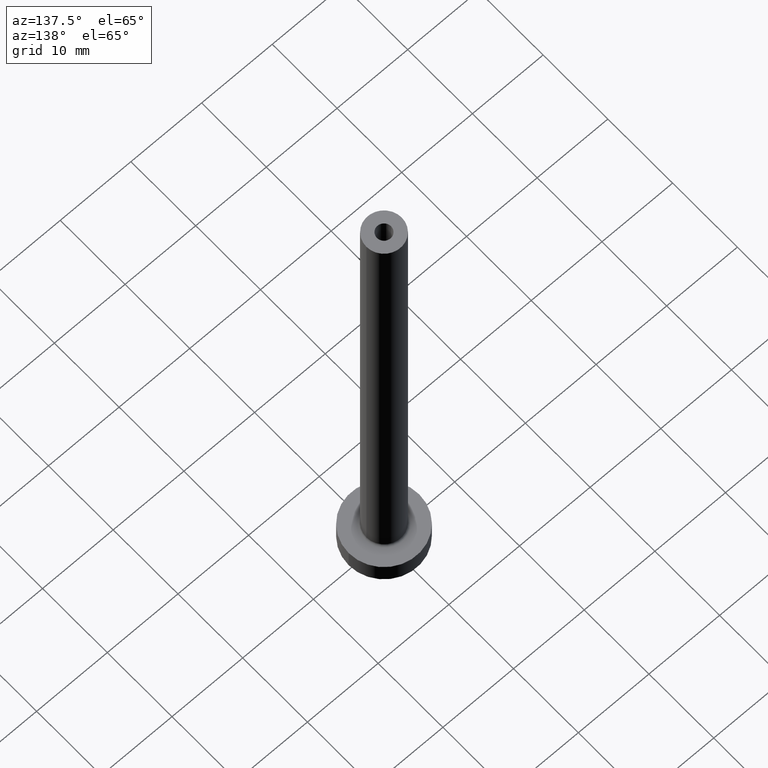
[diagram: clean part render]
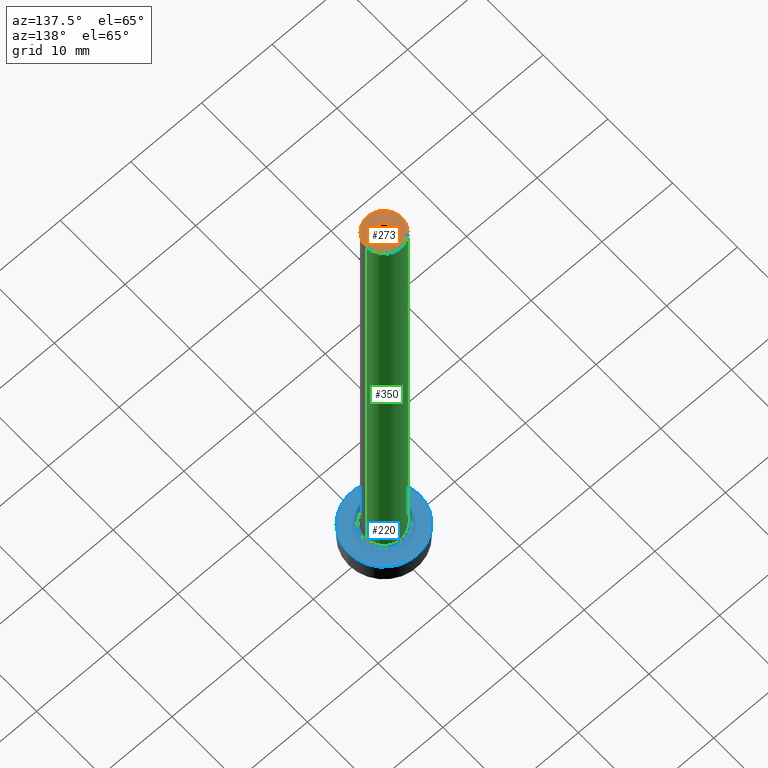
[diagram: same view with three faces highlighted in distinct colors, each labeled with its STEP entity id]
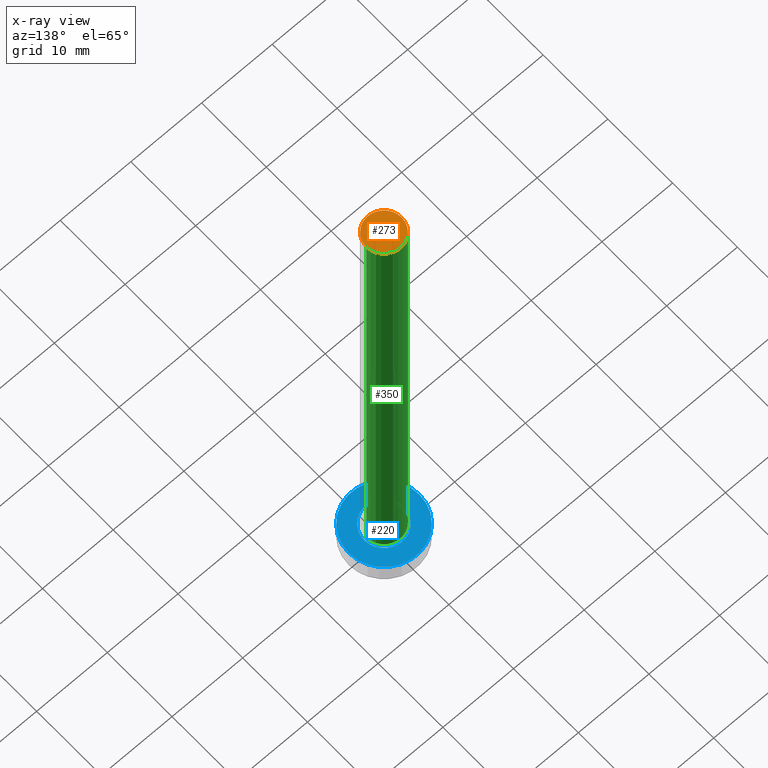
[diagram: x-ray of the same camera — body ghosted, the three highlighted faces saturated]
A machine part, auxiliary view with three faces highlighted in distinct colors.
The next image is the same camera in x-ray (body ghosted, the three faces saturated) — at least one of them is partly hidden behind the body in this view.
Their STEP definitions:

[orange] entity #273 — the highlighted planar face has unit normal (0, 0, 1).
#12 = DIRECTION ( 'NONE',  ( 0.000000000000000000, 0.000000000000000000, 1.000000000000000000 ) ) ;
#20 = AXIS2_PLACEMENT_3D ( 'NONE', #134, #29, #340 ) ;
#23 = CIRCLE ( 'NONE', #43, 1.000000000000000000 ) ;
#29 = DIRECTION ( 'NONE',  ( 0.000000000000000000, 0.000000000000000000, 1.000000000000000000 ) ) ;
#36 = VERTEX_POINT ( 'NONE', #423 ) ;
#37 = VERTEX_POINT ( 'NONE', #456 ) ;
#43 = AXIS2_PLACEMENT_3D ( 'NONE', #146, #283, #207 ) ;
#52 = CARTESIAN_POINT ( 'NONE',  ( 2.500000000000000000, 3.061616997868383141E-16, 75.00000000000001421 ) ) ;
#57 = PLANE ( 'NONE',  #128 ) ;
#59 = FACE_OUTER_BOUND ( 'NONE', #344, .T. ) ;
#60 = EDGE_CURVE ( 'NONE', #37, #36, #153, .T. ) ;
#62 = CARTESIAN_POINT ( 'NONE',  ( 0.000000000000000000, 0.000000000000000000, 75.00000000000001421 ) ) ;
#70 = ORIENTED_EDGE ( 'NONE', *, *, #343, .T. ) ;
#76 = CARTESIAN_POINT ( 'NONE',  ( 0.000000000000000000, 0.000000000000000000, 75.00000000000001421 ) ) ;
#78 = EDGE_CURVE ( 'NONE', #404, #349, #330, .T. ) ;
#80 = CIRCLE ( 'NONE', #20, 2.500000000000000000 ) ;
#123 = DIRECTION ( 'NONE',  ( 1.000000000000000000, 0.000000000000000000, -0.000000000000000000 ) ) ;
#128 = AXIS2_PLACEMENT_3D ( 'NONE', #62, #445, #123 ) ;
#134 = CARTESIAN_POINT ( 'NONE',  ( 0.000000000000000000, 0.000000000000000000, 75.00000000000001421 ) ) ;
#146 = CARTESIAN_POINT ( 'NONE',  ( 0.000000000000000000, 0.000000000000000000, 75.00000000000001421 ) ) ;
#151 = DIRECTION ( 'NONE',  ( 1.000000000000000000, 0.000000000000000000, 0.000000000000000000 ) ) ;
#153 = CIRCLE ( 'NONE', #286, 1.000000000000000000 ) ;
#161 = FACE_BOUND ( 'NONE', #167, .T. ) ;
#167 = EDGE_LOOP ( 'NONE', ( #370, #175 ) ) ;
#175 = ORIENTED_EDGE ( 'NONE', *, *, #391, .F. ) ;
#207 = DIRECTION ( 'NONE',  ( 1.000000000000000000, 0.000000000000000000, 0.000000000000000000 ) ) ;
#216 = DIRECTION ( 'NONE',  ( 1.000000000000000000, 0.000000000000000000, 0.000000000000000000 ) ) ;
#232 = ORIENTED_EDGE ( 'NONE', *, *, #78, .T. ) ;
#243 = CARTESIAN_POINT ( 'NONE',  ( -2.500000000000000000, 0.000000000000000000, 75.00000000000001421 ) ) ;
#251 = AXIS2_PLACEMENT_3D ( 'NONE', #76, #363, #216 ) ;
#273 = ADVANCED_FACE ( 'NONE', ( #161, #59 ), #57, .T. ) ;
#283 = DIRECTION ( 'NONE',  ( 0.000000000000000000, 0.000000000000000000, 1.000000000000000000 ) ) ;
#286 = AXIS2_PLACEMENT_3D ( 'NONE', #430, #12, #151 ) ;
#330 = CIRCLE ( 'NONE', #251, 2.500000000000000000 ) ;
#340 = DIRECTION ( 'NONE',  ( 1.000000000000000000, 0.000000000000000000, 0.000000000000000000 ) ) ;
#343 = EDGE_CURVE ( 'NONE', #349, #404, #80, .T. ) ;
#344 = EDGE_LOOP ( 'NONE', ( #232, #70 ) ) ;
#349 = VERTEX_POINT ( 'NONE', #52 ) ;
#363 = DIRECTION ( 'NONE',  ( 0.000000000000000000, 0.000000000000000000, 1.000000000000000000 ) ) ;
#370 = ORIENTED_EDGE ( 'NONE', *, *, #60, .F. ) ;
#391 = EDGE_CURVE ( 'NONE', #36, #37, #23, .T. ) ;
#404 = VERTEX_POINT ( 'NONE', #243 ) ;
#423 = CARTESIAN_POINT ( 'NONE',  ( 1.000000000000000000, 1.224646799147353207E-16, 75.00000000000001421 ) ) ;
#430 = CARTESIAN_POINT ( 'NONE',  ( 0.000000000000000000, 0.000000000000000000, 75.00000000000001421 ) ) ;
#445 = DIRECTION ( 'NONE',  ( 0.000000000000000000, 0.000000000000000000, 1.000000000000000000 ) ) ;
#456 = CARTESIAN_POINT ( 'NONE',  ( -1.000000000000000000, 0.000000000000000000, 75.00000000000001421 ) ) ;

[blue] entity #220 — the highlighted planar face has unit normal (0, 0, 1).
#4 = CARTESIAN_POINT ( 'NONE',  ( 0.000000000000000000, 0.000000000000000000, 3.000000000000000000 ) ) ;
#10 = EDGE_CURVE ( 'NONE', #302, #156, #314, .T. ) ;
#73 = CIRCLE ( 'NONE', #200, 5.000000000000000000 ) ;
#77 = CARTESIAN_POINT ( 'NONE',  ( 0.000000000000000000, 0.000000000000000000, 3.000000000000000000 ) ) ;
#114 = DIRECTION ( 'NONE',  ( 1.000000000000000000, 0.000000000000000000, 0.000000000000000000 ) ) ;
#116 = EDGE_CURVE ( 'NONE', #293, #416, #73, .T. ) ;
#121 = CIRCLE ( 'NONE', #241, 2.799999999999999822 ) ;
#126 = EDGE_LOOP ( 'NONE', ( #244, #299 ) ) ;
#138 = DIRECTION ( 'NONE',  ( -0.000000000000000000, -0.000000000000000000, -1.000000000000000000 ) ) ;
#156 = VERTEX_POINT ( 'NONE', #257 ) ;
#157 = FACE_BOUND ( 'NONE', #126, .T. ) ;
#163 = ORIENTED_EDGE ( 'NONE', *, *, #116, .T. ) ;
#164 = DIRECTION ( 'NONE',  ( 0.000000000000000000, 0.000000000000000000, 1.000000000000000000 ) ) ;
#166 = CARTESIAN_POINT ( 'NONE',  ( 2.799999999999999822, 0.000000000000000000, 2.999999999999998668 ) ) ;
#168 = DIRECTION ( 'NONE',  ( 1.000000000000000000, 0.000000000000000000, 0.000000000000000000 ) ) ;
#192 = DIRECTION ( 'NONE',  ( 1.000000000000000000, 0.000000000000000000, 0.000000000000000000 ) ) ;
#200 = AXIS2_PLACEMENT_3D ( 'NONE', #4, #333, #114 ) ;
#214 = DIRECTION ( 'NONE',  ( 1.000000000000000000, 0.000000000000000000, -0.000000000000000000 ) ) ;
#220 = ADVANCED_FACE ( 'NONE', ( #157, #395 ), #296, .T. ) ;
#238 = AXIS2_PLACEMENT_3D ( 'NONE', #77, #428, #214 ) ;
#241 = AXIS2_PLACEMENT_3D ( 'NONE', #379, #301, #168 ) ;
#242 = DIRECTION ( 'NONE',  ( 1.000000000000000000, 0.000000000000000000, 0.000000000000000000 ) ) ;
#244 = ORIENTED_EDGE ( 'NONE', *, *, #10, .T. ) ;
#252 = CARTESIAN_POINT ( 'NONE',  ( 5.000000000000000000, 6.123233995736766282E-16, 3.000000000000000000 ) ) ;
#257 = CARTESIAN_POINT ( 'NONE',  ( -2.799999999999999822, 3.429011037612589276E-16, 2.999999999999998668 ) ) ;
#293 = VERTEX_POINT ( 'NONE', #457 ) ;
#296 = PLANE ( 'NONE',  #238 ) ;
#299 = ORIENTED_EDGE ( 'NONE', *, *, #364, .T. ) ;
#301 = DIRECTION ( 'NONE',  ( -0.000000000000000000, -0.000000000000000000, -1.000000000000000000 ) ) ;
#302 = VERTEX_POINT ( 'NONE', #166 ) ;
#304 = ORIENTED_EDGE ( 'NONE', *, *, #359, .T. ) ;
#309 = CARTESIAN_POINT ( 'NONE',  ( 0.000000000000000000, 0.000000000000000000, 3.000000000000000000 ) ) ;
#314 = CIRCLE ( 'NONE', #325, 2.799999999999999822 ) ;
#323 = AXIS2_PLACEMENT_3D ( 'NONE', #407, #164, #192 ) ;
#325 = AXIS2_PLACEMENT_3D ( 'NONE', #309, #138, #242 ) ;
#333 = DIRECTION ( 'NONE',  ( 0.000000000000000000, 0.000000000000000000, 1.000000000000000000 ) ) ;
#359 = EDGE_CURVE ( 'NONE', #416, #293, #400, .T. ) ;
#364 = EDGE_CURVE ( 'NONE', #156, #302, #121, .T. ) ;
#379 = CARTESIAN_POINT ( 'NONE',  ( 0.000000000000000000, 0.000000000000000000, 3.000000000000000000 ) ) ;
#395 = FACE_OUTER_BOUND ( 'NONE', #409, .T. ) ;
#400 = CIRCLE ( 'NONE', #323, 5.000000000000000000 ) ;
#407 = CARTESIAN_POINT ( 'NONE',  ( 0.000000000000000000, 0.000000000000000000, 3.000000000000000000 ) ) ;
#409 = EDGE_LOOP ( 'NONE', ( #163, #304 ) ) ;
#416 = VERTEX_POINT ( 'NONE', #252 ) ;
#428 = DIRECTION ( 'NONE',  ( 0.000000000000000000, 0.000000000000000000, 1.000000000000000000 ) ) ;
#457 = CARTESIAN_POINT ( 'NONE',  ( -5.000000000000000000, 0.000000000000000000, 3.000000000000000000 ) ) ;

[green] entity #350 — the highlighted cylindrical surface (edge-blend (fillet) strip) has radius 2.5 mm, axis along (-0, -0, -1).
#7 = AXIS2_PLACEMENT_3D ( 'NONE', #326, #397, #112 ) ;
#20 = AXIS2_PLACEMENT_3D ( 'NONE', #134, #29, #340 ) ;
#27 = DIRECTION ( 'NONE',  ( -0.000000000000000000, -0.000000000000000000, -1.000000000000000000 ) ) ;
#29 = DIRECTION ( 'NONE',  ( 0.000000000000000000, 0.000000000000000000, 1.000000000000000000 ) ) ;
#50 = VERTEX_POINT ( 'NONE', #360 ) ;
#52 = CARTESIAN_POINT ( 'NONE',  ( 2.500000000000000000, 3.061616997868383141E-16, 75.00000000000001421 ) ) ;
#56 = ORIENTED_EDGE ( 'NONE', *, *, #343, .F. ) ;
#65 = AXIS2_PLACEMENT_3D ( 'NONE', #413, #308, #455 ) ;
#69 = LINE ( 'NONE', #211, #362 ) ;
#80 = CIRCLE ( 'NONE', #20, 2.500000000000000000 ) ;
#112 = DIRECTION ( 'NONE',  ( 1.000000000000000000, 0.000000000000000000, 0.000000000000000000 ) ) ;
#134 = CARTESIAN_POINT ( 'NONE',  ( 0.000000000000000000, 0.000000000000000000, 75.00000000000001421 ) ) ;
#135 = EDGE_CURVE ( 'NONE', #136, #50, #361, .T. ) ;
#136 = VERTEX_POINT ( 'NONE', #319 ) ;
#154 = ORIENTED_EDGE ( 'NONE', *, *, #426, .T. ) ;
#159 = VECTOR ( 'NONE', #27, 1000.000000000000000 ) ;
#180 = DIRECTION ( 'NONE',  ( -0.000000000000000000, -0.000000000000000000, -1.000000000000000000 ) ) ;
#198 = LINE ( 'NONE', #225, #159 ) ;
#206 = ORIENTED_EDGE ( 'NONE', *, *, #320, .F. ) ;
#211 = CARTESIAN_POINT ( 'NONE',  ( 2.500000000000000000, 3.061616997868383141E-16, 75.00000000000001421 ) ) ;
#225 = CARTESIAN_POINT ( 'NONE',  ( -2.500000000000000000, 0.000000000000000000, 75.00000000000001421 ) ) ;
#243 = CARTESIAN_POINT ( 'NONE',  ( -2.500000000000000000, 0.000000000000000000, 75.00000000000001421 ) ) ;
#300 = CYLINDRICAL_SURFACE ( 'NONE', #65, 2.500000000000000000 ) ;
#308 = DIRECTION ( 'NONE',  ( -0.000000000000000000, -0.000000000000000000, -1.000000000000000000 ) ) ;
#319 = CARTESIAN_POINT ( 'NONE',  ( 2.500000000000000000, 3.061616997868383141E-16, 3.299999999999997158 ) ) ;
#320 = EDGE_CURVE ( 'NONE', #404, #50, #198, .T. ) ;
#326 = CARTESIAN_POINT ( 'NONE',  ( 0.000000000000000000, 0.000000000000000000, 3.299999999999997158 ) ) ;
#340 = DIRECTION ( 'NONE',  ( 1.000000000000000000, 0.000000000000000000, 0.000000000000000000 ) ) ;
#343 = EDGE_CURVE ( 'NONE', #349, #404, #80, .T. ) ;
#349 = VERTEX_POINT ( 'NONE', #52 ) ;
#350 = ADVANCED_FACE ( 'NONE', ( #374 ), #300, .T. ) ;
#360 = CARTESIAN_POINT ( 'NONE',  ( -2.500000000000000000, 0.000000000000000000, 3.299999999999997158 ) ) ;
#361 = CIRCLE ( 'NONE', #7, 2.500000000000000000 ) ;
#362 = VECTOR ( 'NONE', #180, 1000.000000000000000 ) ;
#367 = EDGE_LOOP ( 'NONE', ( #56, #154, #382, #206 ) ) ;
#374 = FACE_OUTER_BOUND ( 'NONE', #367, .T. ) ;
#382 = ORIENTED_EDGE ( 'NONE', *, *, #135, .T. ) ;
#397 = DIRECTION ( 'NONE',  ( 0.000000000000000000, 0.000000000000000000, 1.000000000000000000 ) ) ;
#404 = VERTEX_POINT ( 'NONE', #243 ) ;
#413 = CARTESIAN_POINT ( 'NONE',  ( 0.000000000000000000, 0.000000000000000000, 75.00000000000001421 ) ) ;
#426 = EDGE_CURVE ( 'NONE', #349, #136, #69, .T. ) ;
#455 = DIRECTION ( 'NONE',  ( -1.000000000000000000, 0.000000000000000000, 0.000000000000000000 ) ) ;